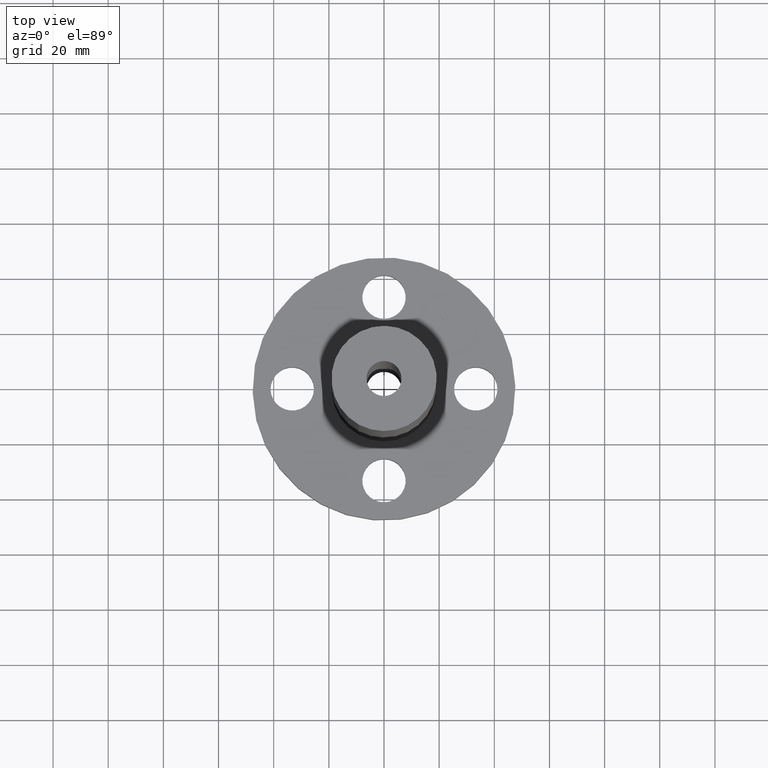
[diagram: clean part render]
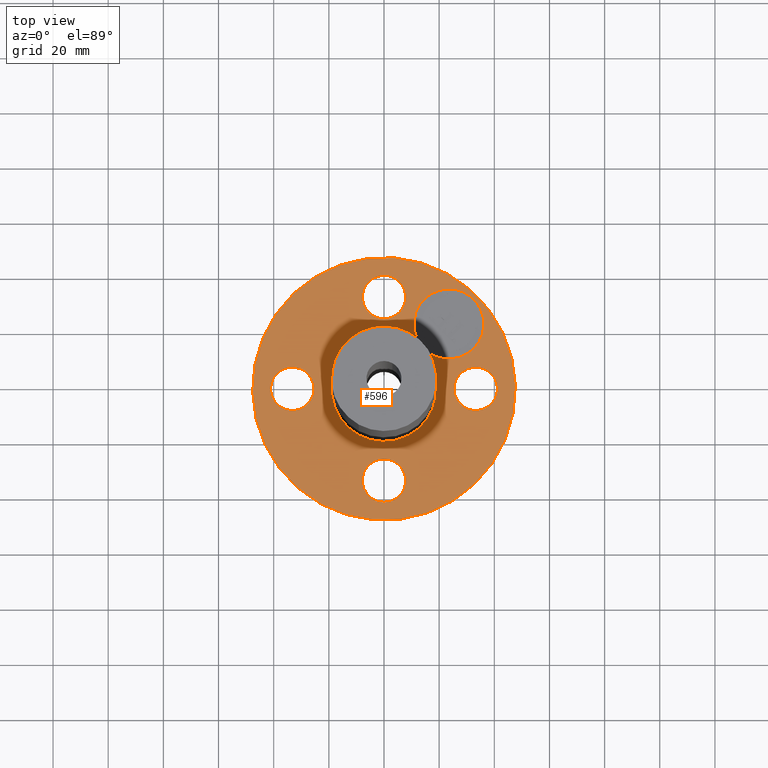
[diagram: same view with one face highlighted and labeled with its STEP entity id]
A machine part, top view. The second image highlights one B-rep face of the part: STEP entity #596.
In plain terms, the highlighted planar face has unit normal (0, 0, -1).
Its self-contained STEP definition (entity closure, byte-faithful):
#51=AXIS2_PLACEMENT_3D('Circle Axis2P3D',#49,#50,$) ;
#182=AXIS2_PLACEMENT_3D('Circle Axis2P3D',#180,#181,$) ;
#206=AXIS2_PLACEMENT_3D('Circle Axis2P3D',#204,#205,$) ;
#225=AXIS2_PLACEMENT_3D('Circle Axis2P3D',#223,#224,$) ;
#242=AXIS2_PLACEMENT_3D('Circle Axis2P3D',#240,#241,$) ;
#277=AXIS2_PLACEMENT_3D('Circle Axis2P3D',#275,#276,$) ;
#434=AXIS2_PLACEMENT_3D('Circle Axis2P3D',#432,#433,$) ;
#453=AXIS2_PLACEMENT_3D('Circle Axis2P3D',#451,#452,$) ;
#477=AXIS2_PLACEMENT_3D('Circle Axis2P3D',#475,#476,$) ;
#496=AXIS2_PLACEMENT_3D('Circle Axis2P3D',#494,#495,$) ;
#520=AXIS2_PLACEMENT_3D('Circle Axis2P3D',#518,#519,$) ;
#539=AXIS2_PLACEMENT_3D('Circle Axis2P3D',#537,#538,$) ;
#552=AXIS2_PLACEMENT_3D('Plane Axis2P3D',#549,#550,#551) ;
#580=AXIS2_PLACEMENT_3D('Circle Axis2P3D',#578,#579,$) ;
#589=AXIS2_PLACEMENT_3D('Circle Axis2P3D',#587,#588,$) ;
#44=CARTESIAN_POINT('Vertex',(1.03794940582,-0.148621916968,0.497500000002)) ;
#49=CARTESIAN_POINT('Axis2P3D Location',(1.31000000001,0.,0.497500000002)) ;
#53=CARTESIAN_POINT('Vertex',(1.58205059419,0.148621916968,0.497500000002)) ;
#180=CARTESIAN_POINT('Axis2P3D Location',(1.31000000001,0.,0.497500000002)) ;
#201=CARTESIAN_POINT('Vertex',(-0.898922884886,-1.64546730355,0.497500000002)) ;
#204=CARTESIAN_POINT('Axis2P3D Location',(0.,0.,0.497500000002)) ;
#208=CARTESIAN_POINT('Vertex',(0.898922884886,1.64546730355,0.497500000002)) ;
#223=CARTESIAN_POINT('Axis2P3D Location',(0.,0.,0.497500000002)) ;
#240=CARTESIAN_POINT('Axis2P3D Location',(0.,0.,0.497500000002)) ;
#244=CARTESIAN_POINT('Vertex',(0.359569153955,0.65818692142,0.497500000002)) ;
#246=CARTESIAN_POINT('Vertex',(-0.359569153955,-0.65818692142,0.497500000002)) ;
#275=CARTESIAN_POINT('Axis2P3D Location',(0.,0.,0.497500000002)) ;
#429=CARTESIAN_POINT('Vertex',(-0.148621916968,-1.03794940582,0.497500000002)) ;
#432=CARTESIAN_POINT('Axis2P3D Location',(-2.10664067108E-016,-1.31000000001,0.497500000002)) ;
#436=CARTESIAN_POINT('Vertex',(0.148621916968,-1.58205059419,0.497500000002)) ;
#451=CARTESIAN_POINT('Axis2P3D Location',(-2.10664067108E-016,-1.31000000001,0.497500000002)) ;
#472=CARTESIAN_POINT('Vertex',(-1.03794940582,0.148621916968,0.497500000002)) ;
#475=CARTESIAN_POINT('Axis2P3D Location',(-1.31000000001,4.21328134217E-016,0.497500000002)) ;
#479=CARTESIAN_POINT('Vertex',(-1.58205059419,-0.148621916968,0.497500000002)) ;
#494=CARTESIAN_POINT('Axis2P3D Location',(-1.31000000001,4.21328134217E-016,0.497500000002)) ;
#515=CARTESIAN_POINT('Vertex',(0.148621916968,1.03794940582,0.497500000002)) ;
#518=CARTESIAN_POINT('Axis2P3D Location',(9.22870633778E-016,1.31000000001,0.497500000002)) ;
#522=CARTESIAN_POINT('Vertex',(-0.148621916968,1.58205059419,0.497500000002)) ;
#537=CARTESIAN_POINT('Axis2P3D Location',(9.22870633778E-016,1.31000000001,0.497500000002)) ;
#549=CARTESIAN_POINT('Axis2P3D Location',(0.,1.87500000001,0.497500000002)) ;
#578=CARTESIAN_POINT('Axis2P3D Location',(0.926309883358,0.926309883358,0.497500000002)) ;
#582=CARTESIAN_POINT('Vertex',(1.27986327042,0.572756496299,0.497500000002)) ;
#584=CARTESIAN_POINT('Vertex',(0.572756496299,1.27986327042,0.497500000002)) ;
#587=CARTESIAN_POINT('Axis2P3D Location',(0.926309883358,0.926309883358,0.497500000002)) ;
#50=DIRECTION('Axis2P3D Direction',(0.,-0.,0.0393700787402)) ;
#181=DIRECTION('Axis2P3D Direction',(0.,-0.,0.0393700787402)) ;
#205=DIRECTION('Axis2P3D Direction',(0.,0.,-0.0393700787402)) ;
#224=DIRECTION('Axis2P3D Direction',(0.,0.,-0.0393700787402)) ;
#241=DIRECTION('Axis2P3D Direction',(0.,0.,-0.0393700787402)) ;
#276=DIRECTION('Axis2P3D Direction',(0.,0.,-0.0393700787402)) ;
#433=DIRECTION('Axis2P3D Direction',(0.,0.,0.0393700787402)) ;
#452=DIRECTION('Axis2P3D Direction',(0.,0.,0.0393700787402)) ;
#476=DIRECTION('Axis2P3D Direction',(0.,0.,0.0393700787402)) ;
#495=DIRECTION('Axis2P3D Direction',(0.,0.,0.0393700787402)) ;
#519=DIRECTION('Axis2P3D Direction',(0.,-0.,0.0393700787402)) ;
#538=DIRECTION('Axis2P3D Direction',(0.,-0.,0.0393700787402)) ;
#550=DIRECTION('Axis2P3D Direction',(0.,0.,-0.0393700787402)) ;
#551=DIRECTION('Axis2P3D XDirection',(0.0393700787402,0.,0.)) ;
#579=DIRECTION('Axis2P3D Direction',(0.,0.,-0.0393700787402)) ;
#588=DIRECTION('Axis2P3D Direction',(0.,0.,-0.0393700787402)) ;
#555=ORIENTED_EDGE('',*,*,#227,.F.) ;
#556=ORIENTED_EDGE('',*,*,#210,.F.) ;
#559=ORIENTED_EDGE('',*,*,#55,.T.) ;
#560=ORIENTED_EDGE('',*,*,#184,.T.) ;
#563=ORIENTED_EDGE('',*,*,#279,.T.) ;
#564=ORIENTED_EDGE('',*,*,#248,.T.) ;
#567=ORIENTED_EDGE('',*,*,#455,.T.) ;
#568=ORIENTED_EDGE('',*,*,#438,.T.) ;
#571=ORIENTED_EDGE('',*,*,#498,.T.) ;
#572=ORIENTED_EDGE('',*,*,#481,.T.) ;
#575=ORIENTED_EDGE('',*,*,#541,.T.) ;
#576=ORIENTED_EDGE('',*,*,#524,.T.) ;
#593=ORIENTED_EDGE('',*,*,#586,.F.) ;
#594=ORIENTED_EDGE('',*,*,#591,.F.) ;
#561=FACE_BOUND('',#558,.T.) ;
#565=FACE_BOUND('',#562,.T.) ;
#569=FACE_BOUND('',#566,.T.) ;
#573=FACE_BOUND('',#570,.T.) ;
#577=FACE_BOUND('',#574,.T.) ;
#595=FACE_BOUND('',#592,.T.) ;
#596=ADVANCED_FACE('PartBody',(#557,#561,#565,#569,#573,#577,#595),#553,.F.) ;
#52=CIRCLE('generated circle',#51,0.310000000001) ;
#183=CIRCLE('generated circle',#182,0.310000000001) ;
#207=CIRCLE('generated circle',#206,1.87500000001) ;
#226=CIRCLE('generated circle',#225,1.87500000001) ;
#243=CIRCLE('generated circle',#242,0.750000000003) ;
#278=CIRCLE('generated circle',#277,0.750000000003) ;
#435=CIRCLE('generated circle',#434,0.310000000001) ;
#454=CIRCLE('generated circle',#453,0.310000000001) ;
#478=CIRCLE('generated circle',#477,0.310000000001) ;
#497=CIRCLE('generated circle',#496,0.310000000001) ;
#521=CIRCLE('generated circle',#520,0.310000000001) ;
#540=CIRCLE('generated circle',#539,0.310000000001) ;
#581=CIRCLE('generated circle',#580,0.499999995002) ;
#590=CIRCLE('generated circle',#589,0.499999995002) ;
#55=EDGE_CURVE('',#54,#45,#52,.F.) ;
#184=EDGE_CURVE('',#45,#54,#183,.F.) ;
#210=EDGE_CURVE('',#202,#209,#207,.T.) ;
#227=EDGE_CURVE('',#209,#202,#226,.T.) ;
#248=EDGE_CURVE('',#245,#247,#243,.T.) ;
#279=EDGE_CURVE('',#247,#245,#278,.T.) ;
#438=EDGE_CURVE('',#437,#430,#435,.F.) ;
#455=EDGE_CURVE('',#430,#437,#454,.F.) ;
#481=EDGE_CURVE('',#480,#473,#478,.F.) ;
#498=EDGE_CURVE('',#473,#480,#497,.F.) ;
#524=EDGE_CURVE('',#523,#516,#521,.F.) ;
#541=EDGE_CURVE('',#516,#523,#540,.F.) ;
#586=EDGE_CURVE('',#583,#585,#581,.F.) ;
#591=EDGE_CURVE('',#585,#583,#590,.F.) ;
#554=EDGE_LOOP('',(#555,#556)) ;
#558=EDGE_LOOP('',(#559,#560)) ;
#562=EDGE_LOOP('',(#563,#564)) ;
#566=EDGE_LOOP('',(#567,#568)) ;
#570=EDGE_LOOP('',(#571,#572)) ;
#574=EDGE_LOOP('',(#575,#576)) ;
#592=EDGE_LOOP('',(#593,#594)) ;
#557=FACE_OUTER_BOUND('',#554,.T.) ;
#553=PLANE('',#552) ;
#45=VERTEX_POINT('',#44) ;
#54=VERTEX_POINT('',#53) ;
#202=VERTEX_POINT('',#201) ;
#209=VERTEX_POINT('',#208) ;
#245=VERTEX_POINT('',#244) ;
#247=VERTEX_POINT('',#246) ;
#430=VERTEX_POINT('',#429) ;
#437=VERTEX_POINT('',#436) ;
#473=VERTEX_POINT('',#472) ;
#480=VERTEX_POINT('',#479) ;
#516=VERTEX_POINT('',#515) ;
#523=VERTEX_POINT('',#522) ;
#583=VERTEX_POINT('',#582) ;
#585=VERTEX_POINT('',#584) ;